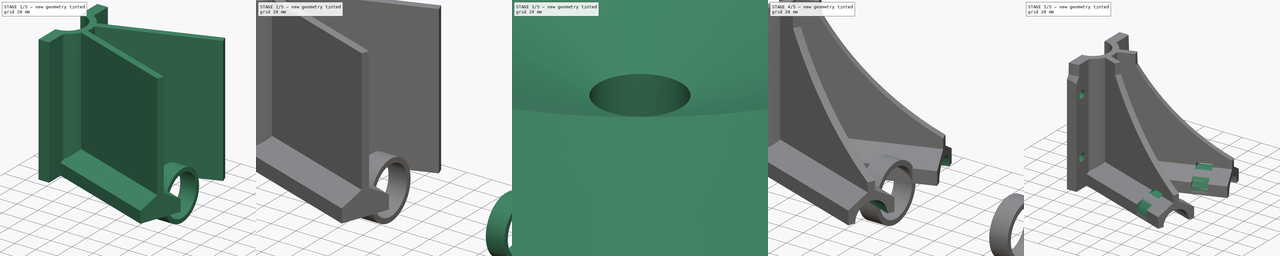
[diagram: build sequence overview — one tinted view per stage of 5, left to right]
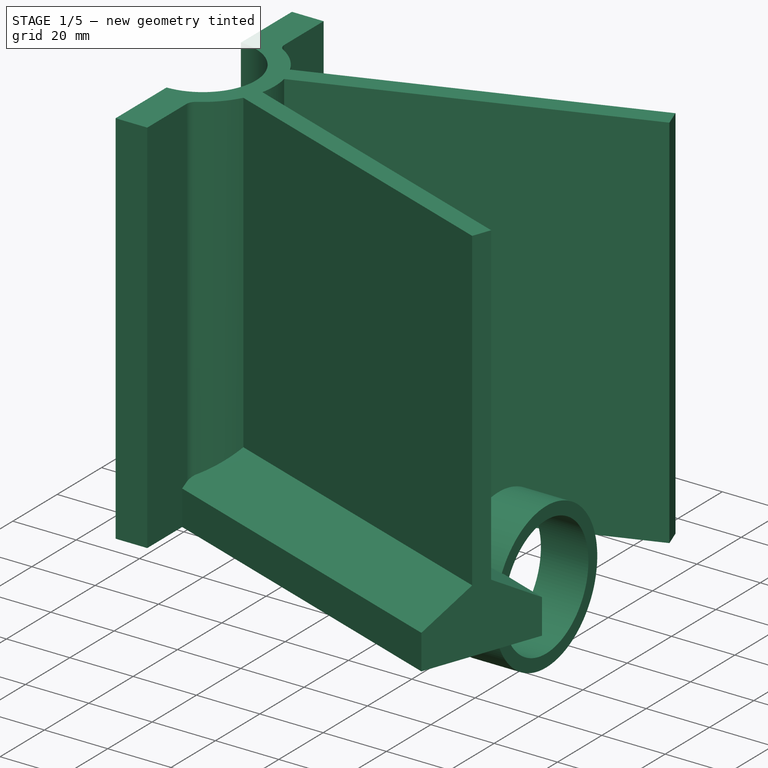
[diagram: stage 1 of 5 — iso view after this stage's code; geometry added in this stage tinted green]
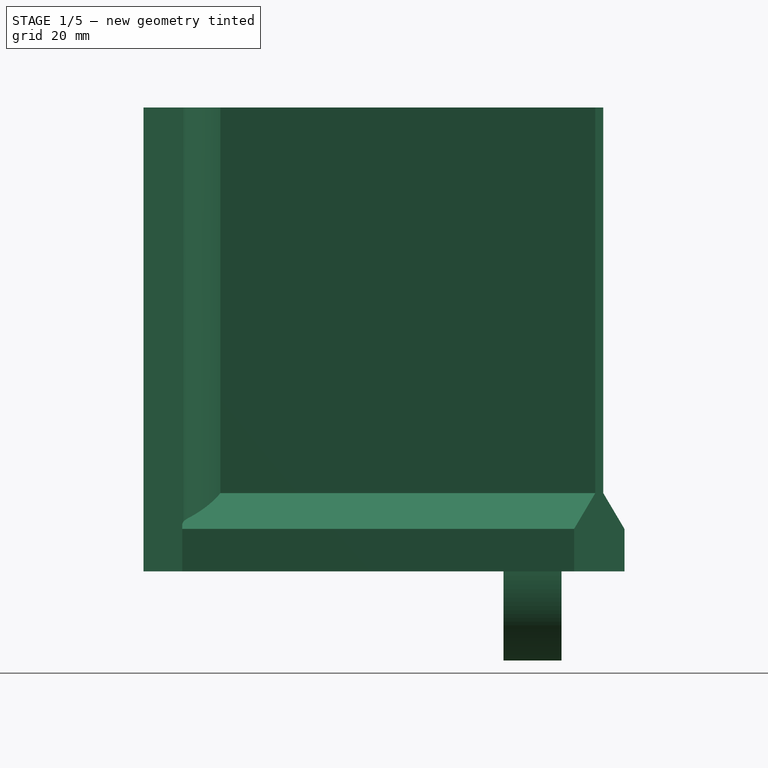
[diagram: stage 1 of 5 — front view after this stage's code; geometry added in this stage tinted green]
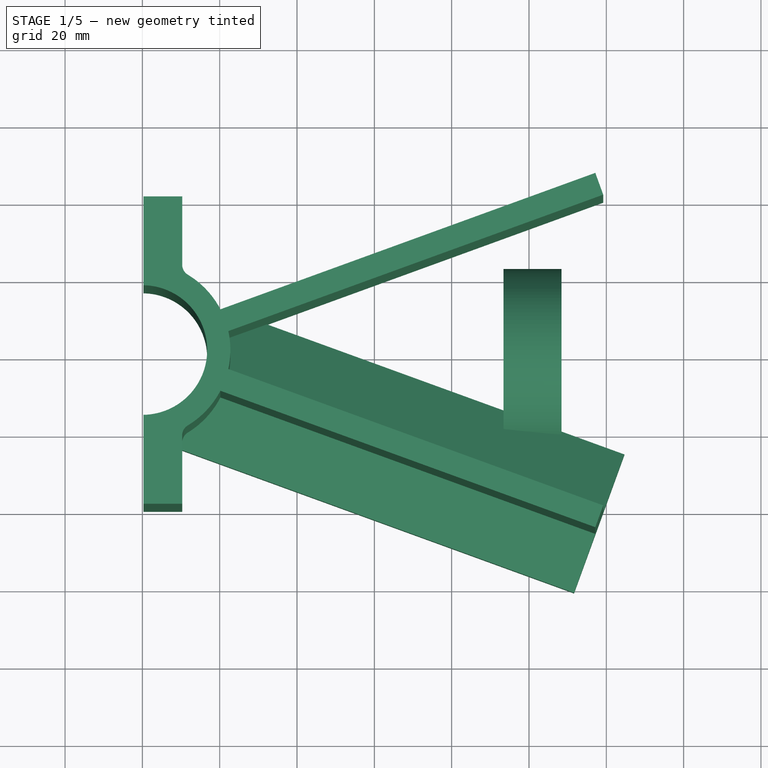
[diagram: stage 1 of 5 — top view after this stage's code; geometry added in this stage tinted green]
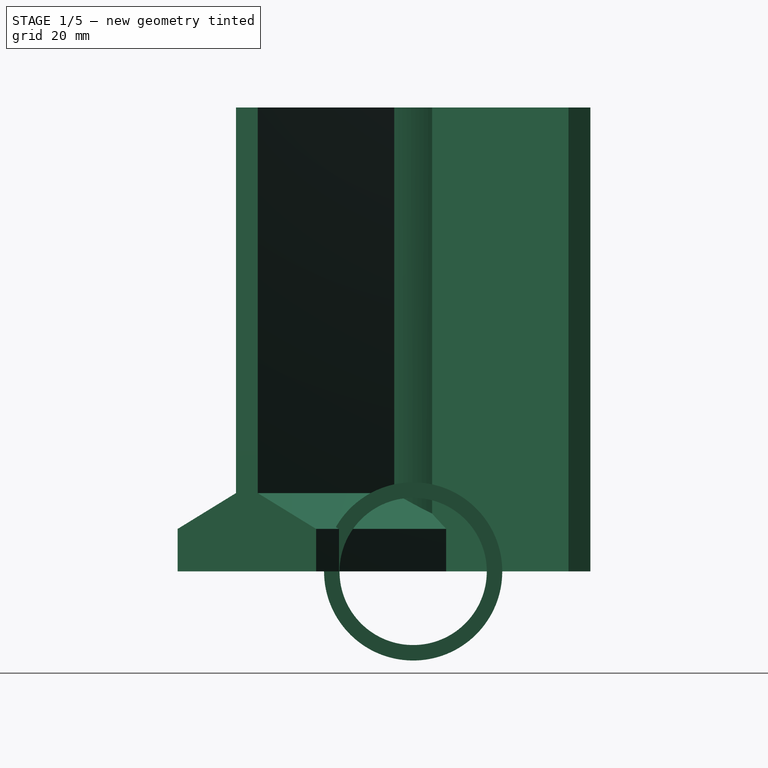
[diagram: stage 1 of 5 — right view after this stage's code; geometry added in this stage tinted green]
FCSTD DOCUMENT  (FreeCAD 0.21R33771 (Git))
Label: MoxonHubSmall
License: All rights reserved
LicenseURL: http://en.wikipedia.org/wiki/All_rights_reserved
objects: Sketcher::SketchObject×10, PartDesign::Body×8, PartDesign::Plane×4, PartDesign::FeatureBase×4, PartDesign::Pocket×4, PartDesign::Pad×3, PartDesign::Revolution×3, PartDesign::Boolean×2
note: 48 computed .brp shape members not serialized (recipe doc carries the construction recipe); baked Part::Feature solids carry a one-line shape summary decoded from their .brp

FEATURE [Sketcher::SketchObject] Sketch
  FullyConstrained = false
  MapMode = 5
  Support = -> [XY_Plane]
  expr: Constraints[39] = .Constraints.mastdia / 2 + 6 mm
  expr: Constraints[40] = .Constraints.mastdia / 2 + 6 mm
  expr: Constraints[41] = .Constraints.mastdia / 2 + 6 mm
  sketch-geometry (20):
    g0: LineSegment StartX=0.3 StartY=39.7623 StartZ=0 EndX=10.3 EndY=39.7623 EndZ=0
    g1: LineSegment StartX=10.3 StartY=-39.7623 StartZ=0 EndX=0.3 EndY=-39.7623 EndZ=0
    g2: ArcOfCircle CenterX=0 CenterY=0 CenterZ=0 NormalX=0 NormalY=0 NormalZ=1 AngleXU=0 Radius=16.765 StartAngle=4.73028 EndAngle=7.83609
    g3: LineSegment StartX=0.3 StartY=-39.7623 StartZ=0 EndX=0.3 EndY=-16.7623 EndZ=0
    g4: LineSegment StartX=0.3 StartY=16.7623 StartZ=0 EndX=0.3 EndY=39.7623 EndZ=0
    g5: LineSegment StartX=10.3 StartY=39.7623 StartZ=0 EndX=10.3 EndY=22.0668 EndZ=0
    g6: LineSegment StartX=10.3 StartY=-22.0668 StartZ=0 EndX=10.3 EndY=-39.7623 EndZ=0
    g7: LineSegment StartX=0 StartY=0 StartZ=0 EndX=110.036 EndY=40.0498 EndZ=0
    g8: LineSegment StartX=0 StartY=0 StartZ=0 EndX=113.566 EndY=-41.3347 EndZ=0
    g9: LineSegment StartX=20.1795 StartY=10.5373 StartZ=0 EndX=117.156 EndY=45.8337 EndZ=0
    g10: LineSegment StartX=22.2316 StartY=4.89911 StartZ=0 EndX=119.208 EndY=40.1956 EndZ=0
    g11: LineSegment StartX=22.2316 StartY=-4.89911 StartZ=0 EndX=119.208 EndY=-40.1956 EndZ=0
    g12: LineSegment StartX=20.1795 StartY=-10.5373 StartZ=0 EndX=117.156 EndY=-45.8337 EndZ=0
    g13: LineSegment StartX=117.156 StartY=-45.8337 StartZ=0 EndX=119.208 EndY=-40.1956 EndZ=0
    g14: LineSegment StartX=119.208 StartY=40.1956 StartZ=0 EndX=117.156 EndY=45.8337 EndZ=0
    g15: ArcOfCircle CenterX=0 CenterY=0 CenterZ=0 NormalX=0 NormalY=0 NormalZ=1 AngleXU=0 Radius=22.765 StartAngle=0.481232 EndAngle=1.02838
    g16: ArcOfCircle CenterX=0 CenterY=0 CenterZ=0 NormalX=0 NormalY=0 NormalZ=1 AngleXU=0 Radius=22.765 StartAngle=5.2548 EndAngle=5.80195
    g17: ArcOfCircle CenterX=0 CenterY=0 CenterZ=0 NormalX=0 NormalY=0 NormalZ=1 AngleXU=0 Radius=22.765 StartAngle=6.06629 EndAngle=6.50009
    g18: ArcOfCircle CenterX=13.3 CenterY=22.0668 CenterZ=0 NormalX=0 NormalY=0 NormalZ=1 AngleXU=0 Radius=3 StartAngle=3.14159 EndAngle=4.16998
    g19: ArcOfCircle CenterX=13.3 CenterY=-22.0668 CenterZ=0 NormalX=0 NormalY=0 NormalZ=1 AngleXU=0 Radius=3 StartAngle=2.11321 EndAngle=3.14159
  constraints (53):
    c: Coincident(g2,g-1)
    c: Coincident(g16,g2)
    c: Coincident(g0,g5)
    c: Coincident(g6,g1)
    c: Coincident(g1,g3)
    c: Coincident(g4,g0)
    c: Horizontal(g0)
    c: Horizontal(g1)
    c: Symmetric(g1,g0,g-1)
    c: DistanceX(g0,g0) = 10
    c: DistanceX(g2,g0) = 0.3
    c: Diameter(g2) = 33.53  'mastdia'
    c: Vertical(g5)
    c: Vertical(g6)
    c: Coincident(g4,g2)
    c: Coincident(g3,g2)
    c: Equal(g1,g0)
    c: Coincident(g8,g7)
    c: Angle(g8,g7) = 0.698132
    c: Coincident(g16,g7)
    c: Angle(g7,g-2) = 1.22173
    c: Parallel(g10,g9)
    c: Parallel(g9,g7)
    c: Parallel(g11,g8)
    c: Parallel(g8,g12)
    c: Coincident(g9,g14)
    c: Coincident(g14,g10)
    c: Coincident(g11,g13)
    c: Coincident(g13,g12)
    c: Equal(g14,g13)
    c: Distance(g13) = 6
    c: Symmetric(g11,g12,g8)
    c: Symmetric(g9,g10,g7)
    c: Equal(g11,g9)
    c: Coincident(g16,g15)
    c: Coincident(g15,g9)
    c: Coincident(g17,g10)
    c: Coincident(g17,g11)
    c: Coincident(g16,g12)
    c: Radius(g17) = 22.765
    c: Radius(g15) = 22.765
    c: Radius(g16) = 22.765
    c: Coincident(g17,g2)
    c: DistanceY(g4,g4) = 23
    c: Vertical(g4)
    c: Vertical(g3)
    c: Tangent(g15,g18) = 1.5708
    c: Tangent(g5,g18) = -1.5708
    c: Tangent(g6,g19) = -1.5708
    c: Tangent(g16,g19) = 1.5708
    c: Radius(g19) = 3
    c: Radius(g18) = 3
    c: Distance(g10) = 103.2
FEATURE [PartDesign::Pad] Pad
  Direction = (0,0,1)
  Length = 120
  Length2 = 10
  Profile = -> Sketch
  ReferenceAxis = -> Sketch [N_Axis]
  Type = 0
FEATURE [PartDesign::Body] Body004
  Group = -> [Clone001]
  Origin = -> Origin004
  Placement = pos=(0,0,0) rot=(0,0,1;0.349066rad)
  Tip = -> Clone001
FEATURE [Sketcher::SketchObject] Sketch007
  FullyConstrained = false
  MapMode = 5
  Support = -> [XY_Plane005]
  sketch-geometry (4):
    g0: LineSegment StartX=93.4181 StartY=19.05 StartZ=0 EndX=108.418 EndY=19.05 EndZ=0
    g1: LineSegment StartX=108.418 StartY=19.05 StartZ=0 EndX=108.418 EndY=23.05 EndZ=0
    g2: LineSegment StartX=108.418 StartY=23.05 StartZ=0 EndX=93.4181 EndY=23.05 EndZ=0
    g3: LineSegment StartX=93.4181 StartY=23.05 StartZ=0 EndX=93.4181 EndY=19.05 EndZ=0
  constraints (11):
    c: Coincident(g0,g1)
    c: Coincident(g1,g2)
    c: Coincident(g2,g3)
    c: Coincident(g3,g0)
    c: Horizontal(g0)
    c: Horizontal(g2)
    c: Vertical(g1)
    c: Vertical(g3)
    c: DistanceX(g0,g0) = 15
    c: DistanceY(g1,g1) = 4
    c: DistanceY(g-1,g0) = 19.05
FEATURE [PartDesign::Revolution] Revolution002
  Angle = 360
  Axis = (1,0,0)
  Base = (0,0,0)
  Profile = -> Sketch007
  ReferenceAxis = -> Sketch007 [H_Axis]
FEATURE [PartDesign::Body] Body007
  Group = -> [Clone003]
  Origin = -> Origin007
  Placement = pos=(0,0,0) rot=(0,0,1;0.349066rad)
  Tip = -> Clone003
FEATURE [PartDesign::Pad] Pad004  label="LArm"
  BaseFeature = -> Pad
  Direction = (0.939693,-0.34202,1e-16)
  Length = 109
  Length2 = 10
  Profile = -> Sketch001
  ReferenceAxis = -> Sketch001 [N_Axis]
  Reversed = true
  Type = 0
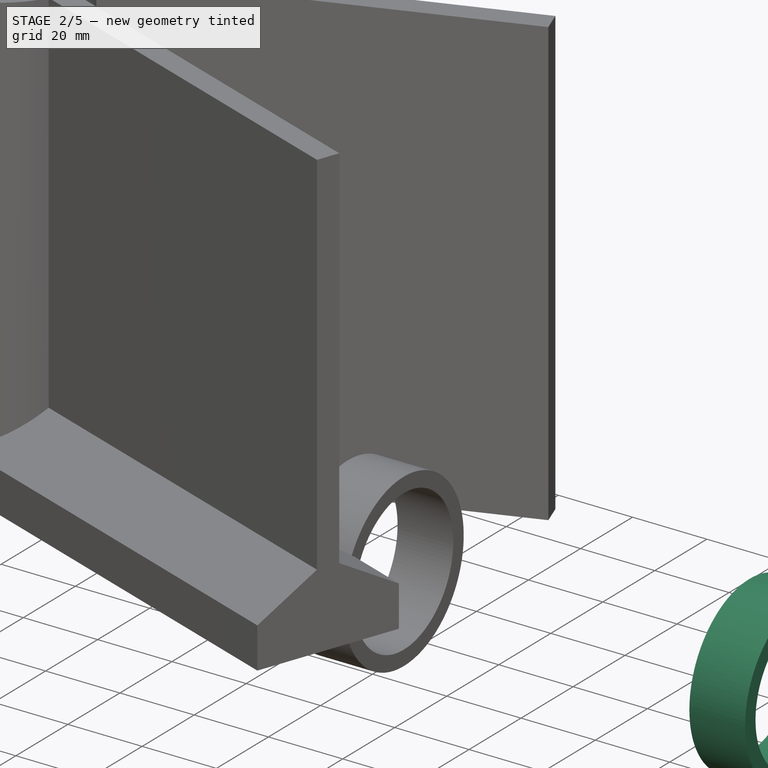
[diagram: stage 2 of 5 — iso view after this stage's code; geometry added in this stage tinted green]
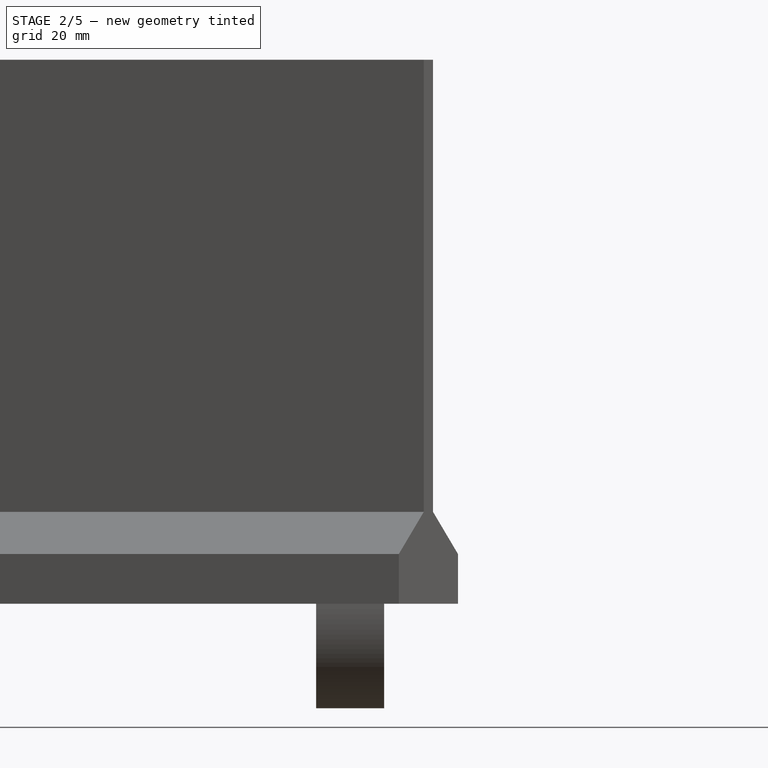
[diagram: stage 2 of 5 — front view after this stage's code; geometry added in this stage tinted green]
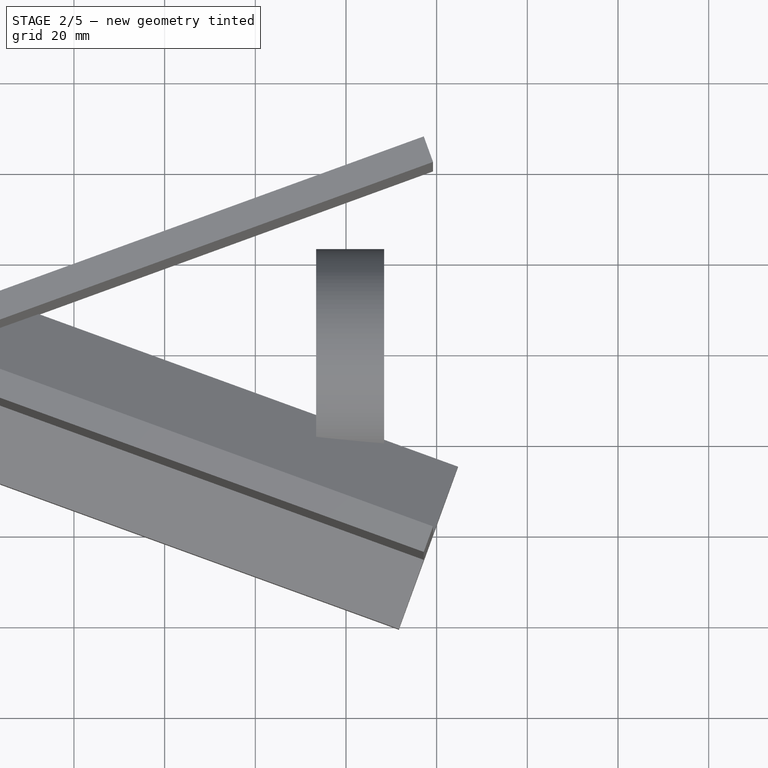
[diagram: stage 2 of 5 — top view after this stage's code; geometry added in this stage tinted green]
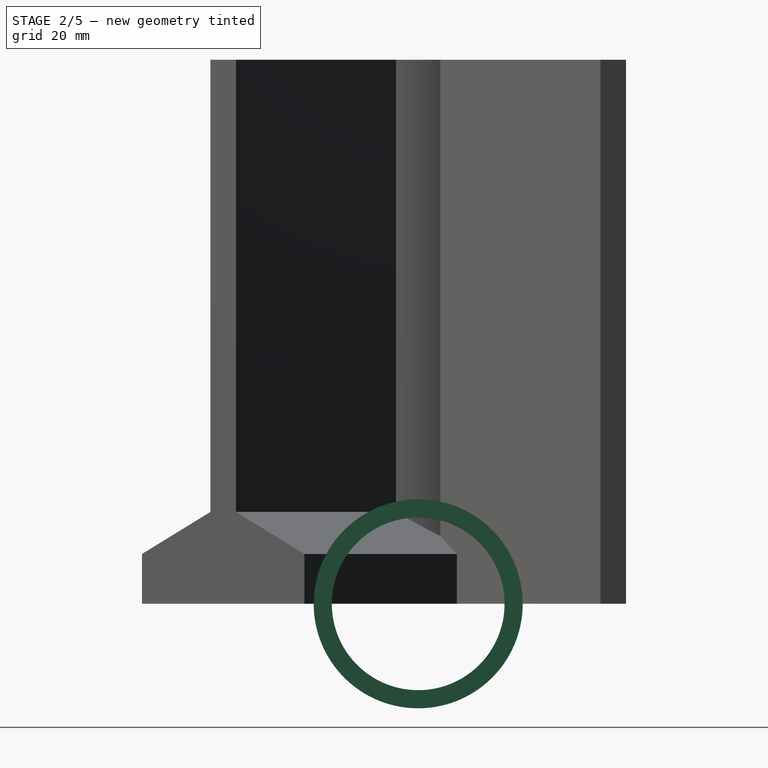
[diagram: stage 2 of 5 — right view after this stage's code; geometry added in this stage tinted green]
FEATURE [PartDesign::Body] Body001
  Group = -> [DatumPlane002,Sketch003,Revolution]
  Origin = -> Origin001
  Tip = -> Revolution
FEATURE [Sketcher::SketchObject] Sketch004
  FullyConstrained = true
  MapMode = 5
  Placement = pos=(118.182,-43.0147,0) rot=(0.710565,0.497543,0.497543;1.90603rad)
  Support = -> [DatumPlane]
  sketch-geometry (1):
    g0: Circle CenterX=0 CenterY=0 CenterZ=0 NormalX=0 NormalY=0 NormalZ=1 AngleXU=0 Radius=13.335
  constraints (3):
    c: PointOnObject(g0,g-2)
    c: Diameter(g0) = 26.67
    c: DistanceY(g0,g-1) = 0
FEATURE [Sketcher::SketchObject] Sketch005
  FullyConstrained = true
  MapMode = 5
  Placement = pos=(118.182,43.0147,0) rot=(0.443713,0.633687,0.633687;2.30637rad)
  Support = -> [DatumPlane001]
  sketch-geometry (1):
    g0: Circle CenterX=0 CenterY=0 CenterZ=0 NormalX=0 NormalY=0 NormalZ=1 AngleXU=0 Radius=13.335
  constraints (3):
    c: PointOnObject(g0,g-2)
    c: Diameter(g0) = 26.67
    c: DistanceY(g0,g-1) = 0
FEATURE [Sketcher::SketchObject] Sketch006
  FullyConstrained = false
  MapMode = 5
  Support = -> [XY_Plane002]
  sketch-geometry (4):
    g0: LineSegment StartX=201.474 StartY=19.05 StartZ=0 EndX=216.474 EndY=19.05 EndZ=0
    g1: LineSegment StartX=216.474 StartY=19.05 StartZ=0 EndX=216.474 EndY=23.05 EndZ=0
    g2: LineSegment StartX=216.474 StartY=23.05 StartZ=0 EndX=201.474 EndY=23.05 EndZ=0
    g3: LineSegment StartX=201.474 StartY=23.05 StartZ=0 EndX=201.474 EndY=19.05 EndZ=0
  constraints (11):
    c: Coincident(g0,g1)
    c: Coincident(g1,g2)
    c: Coincident(g2,g3)
    c: Coincident(g3,g0)
    c: Horizontal(g0)
    c: Horizontal(g2)
    c: Vertical(g1)
    c: Vertical(g3)
    c: DistanceX(g0,g0) = 15
    c: DistanceY(g1,g1) = 4
    c: DistanceY(g-1,g0) = 19.05
FEATURE [PartDesign::Revolution] Revolution001
  Angle = 360
  Axis = (1,0,0)
  Base = (0,0,0)
  Profile = -> Sketch006
  ReferenceAxis = -> Sketch006 [H_Axis]
FEATURE [PartDesign::Body] Body005  label="Insidering"
  Group = -> [Sketch007,Revolution002]
  Origin = -> Origin005
  Tip = -> Revolution002
FEATURE [PartDesign::FeatureBase] Clone002
  BaseFeature = -> Revolution002
FEATURE [PartDesign::Body] Body006
  Group = -> [Clone002]
  Origin = -> Origin006
  Placement = pos=(0,0,0) rot=(0,0,-1;0.349066rad)
  Tip = -> Clone002
FEATURE [PartDesign::FeatureBase] Clone003
  BaseFeature = -> Revolution002
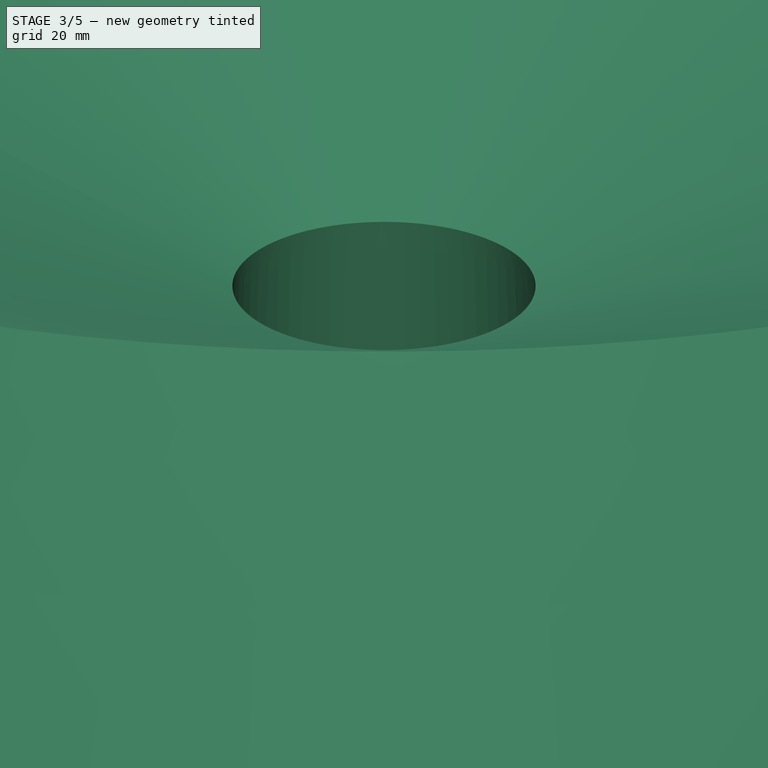
[diagram: stage 3 of 5 — iso view after this stage's code; geometry added in this stage tinted green]
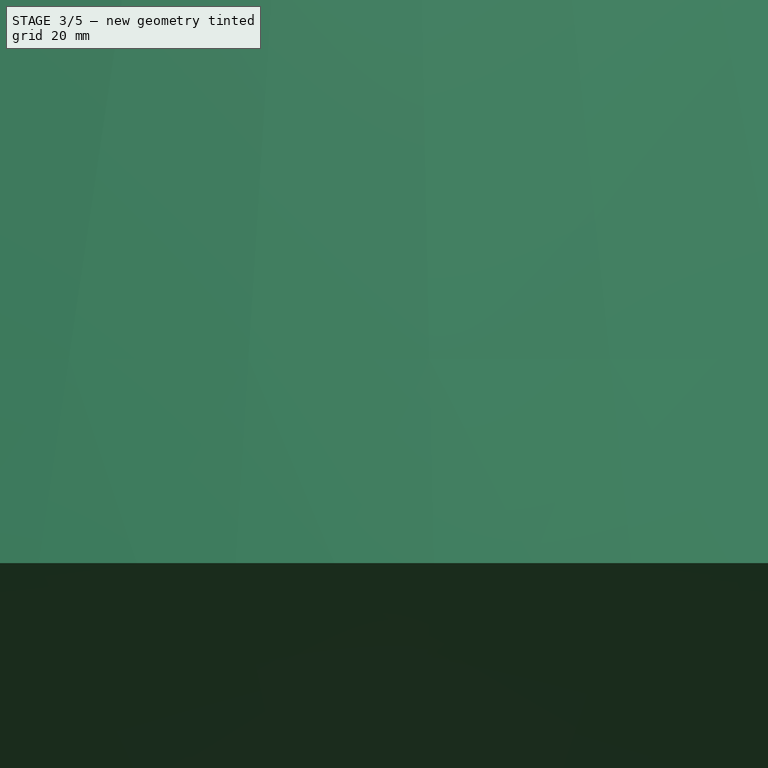
[diagram: stage 3 of 5 — front view after this stage's code; geometry added in this stage tinted green]
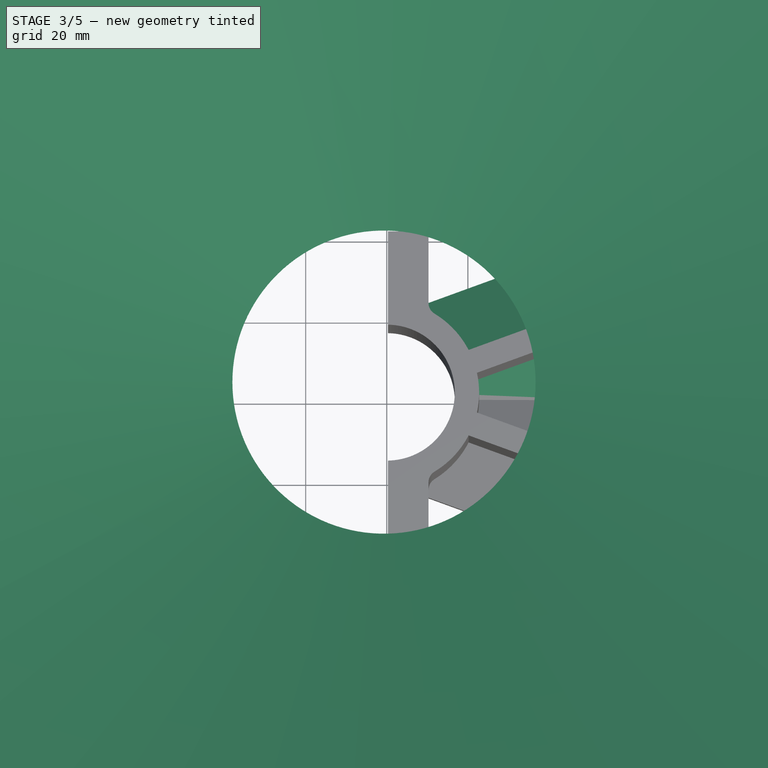
[diagram: stage 3 of 5 — top view after this stage's code; geometry added in this stage tinted green]
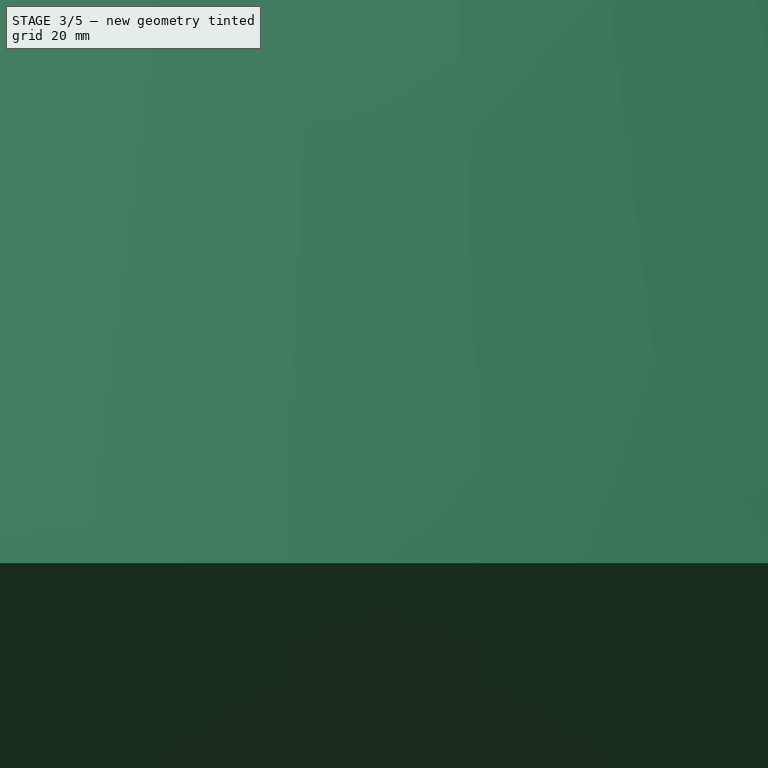
[diagram: stage 3 of 5 — right view after this stage's code; geometry added in this stage tinted green]
FEATURE [PartDesign::Plane] DatumPlane  label="LDatumPlane"
  Length = 196.683
  MapMode = 5
  Placement = pos=(118.182,-43.0147,0) rot=(0.710565,0.497543,0.497543;1.90603rad)
  ResizeMode = 0
  Support = -> [Pad]
  Width = 175.999
FEATURE [Sketcher::SketchObject] Sketch001
  FullyConstrained = true
  MapMode = 5
  Placement = pos=(118.182,-43.0147,0) rot=(0.710565,0.497543,0.497543;1.90603rad)
  Support = -> [DatumPlane]
  sketch-geometry (6):
    g0: LineSegment StartX=0 StartY=21.995 StartZ=0 EndX=-19.05 EndY=10.9944 EndZ=0
    g1: LineSegment StartX=-19.05 StartY=10.9944 StartZ=0 EndX=-19.05 EndY=0 EndZ=0
    g2: LineSegment StartX=19.05 StartY=0 StartZ=0 EndX=19.05 EndY=10.9944 EndZ=0
    g3: LineSegment StartX=19.05 StartY=10.9944 StartZ=0 EndX=0 EndY=21.995 EndZ=0
    g4: Circle CenterX=0 CenterY=0 CenterZ=0 NormalX=0 NormalY=0 NormalZ=1 AngleXU=0 Radius=21.995
    g5: LineSegment StartX=-19.05 StartY=0 StartZ=0 EndX=19.05 EndY=0 EndZ=0
  constraints (16):
    c: Coincident(g0,g1)
    c: Coincident(g2,g3)
    c: Coincident(g3,g0)
    c: Equal(g0,g3)
    c: PointOnObject(g0,g4)
    c: PointOnObject(g2,g4)
    c: PointOnObject(g3,g4)
    c: PointOnObject(g3,g-2)
    c: DistanceX(g0,g2) = 38.1
    c: Coincident(g4,g-1)
    c: Horizontal(g5)
    c: Coincident(g1,g5)
    c: Coincident(g2,g5)
    c: Diameter(g4) = 43.99
    c: Vertical(g1)
    c: Symmetric(g2,g1,g4)
FEATURE [PartDesign::Plane] DatumPlane001
  Length = 196.683
  MapMode = 5
  Placement = pos=(118.182,43.0147,0) rot=(0.443713,0.633687,0.633687;2.30637rad)
  ResizeMode = 0
  Support = -> [Pad]
  Width = 175.999
FEATURE [Sketcher::SketchObject] Sketch002
  FullyConstrained = true
  MapMode = 5
  Placement = pos=(118.182,43.0147,0) rot=(0.443713,0.633687,0.633687;2.30637rad)
  Support = -> [DatumPlane001]
  sketch-geometry (6):
    g0: LineSegment StartX=0 StartY=21.995 StartZ=0 EndX=-19.05 EndY=10.9944 EndZ=0
    g1: LineSegment StartX=-19.05 StartY=10.9944 StartZ=0 EndX=-19.05 EndY=0 EndZ=0
    g2: LineSegment StartX=19.05 StartY=0 StartZ=0 EndX=19.05 EndY=10.9944 EndZ=0
    g3: LineSegment StartX=19.05 StartY=10.9944 StartZ=0 EndX=0 EndY=21.995 EndZ=0
    g4: Circle CenterX=0 CenterY=0 CenterZ=0 NormalX=0 NormalY=0 NormalZ=1 AngleXU=0 Radius=21.995
    g5: LineSegment StartX=-19.05 StartY=0 StartZ=0 EndX=19.05 EndY=0 EndZ=0
  constraints (16):
    c: Coincident(g0,g1)
    c: Coincident(g2,g3)
    c: Coincident(g3,g0)
    c: Equal(g0,g3)
    c: PointOnObject(g0,g4)
    c: PointOnObject(g2,g4)
    c: PointOnObject(g3,g4)
    c: PointOnObject(g3,g-2)
    c: DistanceX(g0,g2) = 38.1
    c: Coincident(g4,g-1)
    c: Horizontal(g5)
    c: Coincident(g1,g5)
    c: Coincident(g2,g5)
    c: Diameter(g4) = 43.99
    c: Vertical(g1)
    c: Symmetric(g2,g1,g4)
FEATURE [PartDesign::Plane] DatumPlane002
  Length = 75.4069
  MapMode = 5
  Placement = pos=(-0.68404,1.87939,0) rot=(-0.123724,0.701674,0.701674;3.38779rad)
  ResizeMode = 0
  Width = 61.3213
FEATURE [Sketcher::SketchObject] Sketch003
  FullyConstrained = false
  MapMode = 5
  Placement = pos=(-0.68404,1.87939,0) rot=(-0.123724,0.701674,0.701674;3.38779rad)
  Support = -> [DatumPlane002]
  sketch-geometry (5):
    g0: ArcOfCircle CenterX=-223.518 CenterY=219.603 CenterZ=0 NormalX=0 NormalY=0 NormalZ=1 AngleXU=0 Radius=214.833 StartAngle=4.3544 EndAngle=5.74292
    g1: LineSegment StartX=-298.795 StartY=18.39 StartZ=0 EndX=-490.676 EndY=90.1756 EndZ=0
    g2: LineSegment StartX=-490.676 StartY=90.1756 StartZ=0 EndX=-318.652 EndY=291.762 EndZ=0
    g3: LineSegment StartX=-318.652 StartY=291.762 StartZ=0 EndX=-37.3854 EndY=161.036 EndZ=0
    g4: LineSegment StartX=-37.3854 StartY=161.036 StartZ=0 EndX=-39.2827 EndY=109.101 EndZ=0
  constraints (5):
    c: Tangent(g0,g1) = 1.5708
    c: Coincident(g1,g2)
    c: Coincident(g2,g3)
    c: Coincident(g3,g4)
    c: Coincident(g4,g0)
FEATURE [PartDesign::Revolution] Revolution
  Angle = 360
  Axis = (1e-16,-4e-16,1)
  Base = (-0.68404,1.87939,0)
  Placement = pos=(-0.68404,1.87939,0) rot=(-0.123724,0.701674,0.701674;3.38779rad)
  Profile = -> Sketch003
  ReferenceAxis = -> Sketch003 [V_Axis]
FEATURE [PartDesign::Body] Body002  label="Ring"
  Group = -> [Sketch006,Revolution001]
  Origin = -> Origin002
  Tip = -> Revolution001
FEATURE [PartDesign::FeatureBase] Clone
  BaseFeature = -> Body002
FEATURE [PartDesign::Body] Body003
  Group = -> [Clone]
  Origin = -> Origin003
  Placement = pos=(0,0,0) rot=(0,0,-1;0.349066rad)
  Tip = -> Clone
FEATURE [PartDesign::FeatureBase] Clone001
  BaseFeature = -> Revolution001
FEATURE [PartDesign::Pad] Pad002  label="RArm"
  BaseFeature = -> Pad004
  Direction = (0.939693,0.34202,-2e-16)
  Length = 109
  Length2 = 10
  Profile = -> Sketch002
  ReferenceAxis = -> Sketch002 [N_Axis]
  Reversed = true
  Type = 0
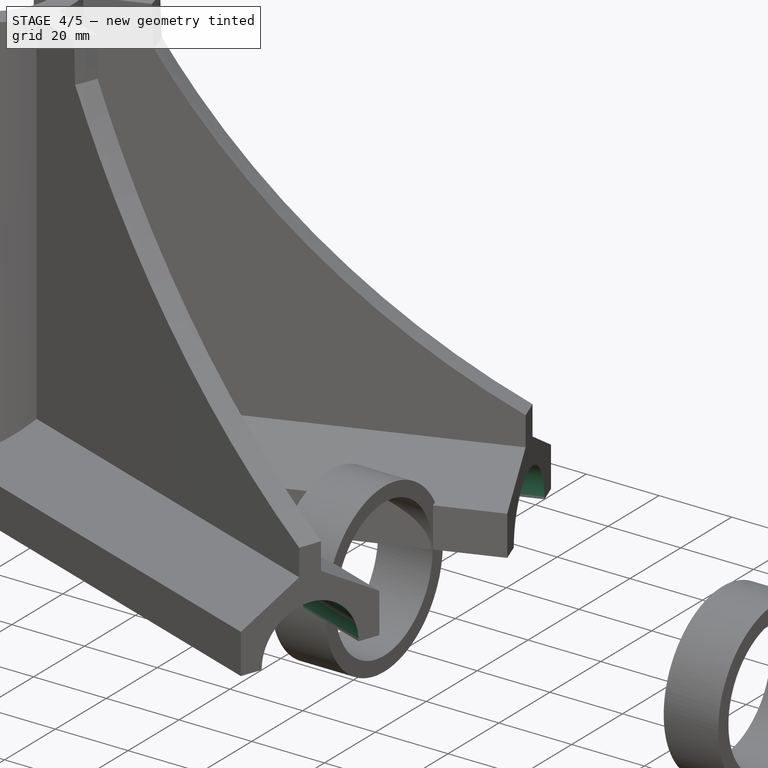
[diagram: stage 4 of 5 — iso view after this stage's code; geometry added in this stage tinted green]
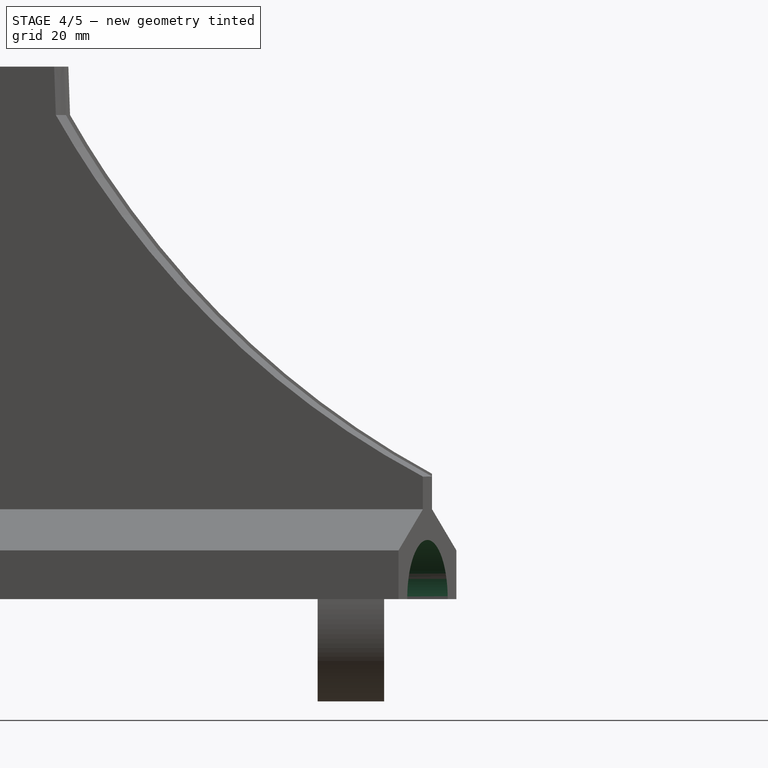
[diagram: stage 4 of 5 — front view after this stage's code; geometry added in this stage tinted green]
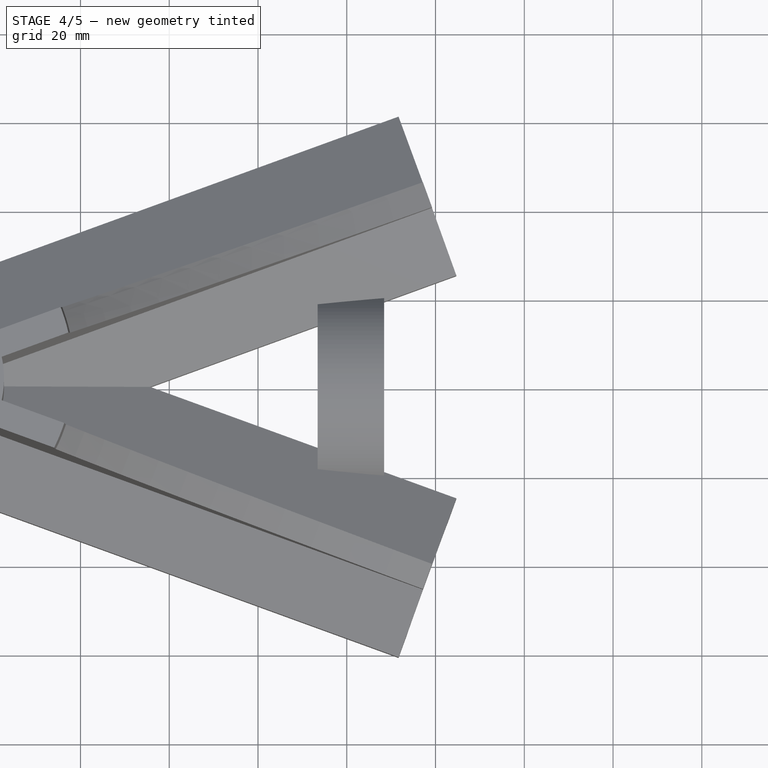
[diagram: stage 4 of 5 — top view after this stage's code; geometry added in this stage tinted green]
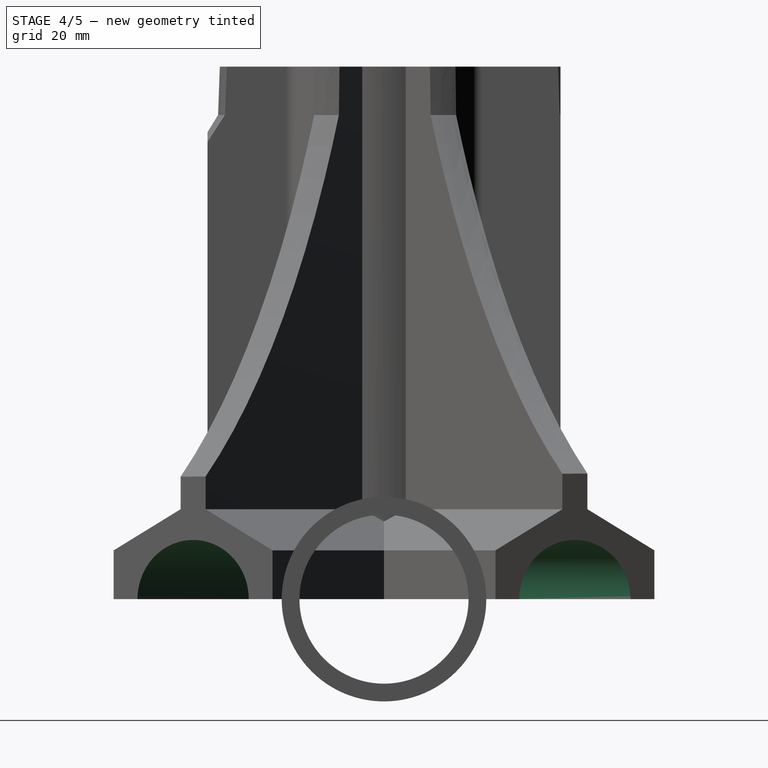
[diagram: stage 4 of 5 — right view after this stage's code; geometry added in this stage tinted green]
FEATURE [PartDesign::Boolean] Boolean
  BaseFeature = -> Pad002
  Group = -> [Body001]
  Type = 1
FEATURE [PartDesign::Pocket] Pocket  label="LPolepocket"
  BaseFeature = -> Boolean
  Direction = (-0.939693,0.34202,-1e-16)
  Length = 77.8
  Length2 = 5
  Profile = -> Sketch004
  ReferenceAxis = -> Sketch004 [N_Axis]
  Type = 0
FEATURE [PartDesign::Pocket] Pocket001  label="RPolepocket"
  BaseFeature = -> Pocket
  Direction = (-0.939693,-0.34202,2e-16)
  Length = 77.8
  Length2 = 5
  Profile = -> Sketch005
  ReferenceAxis = -> Sketch005 [N_Axis]
  Type = 0
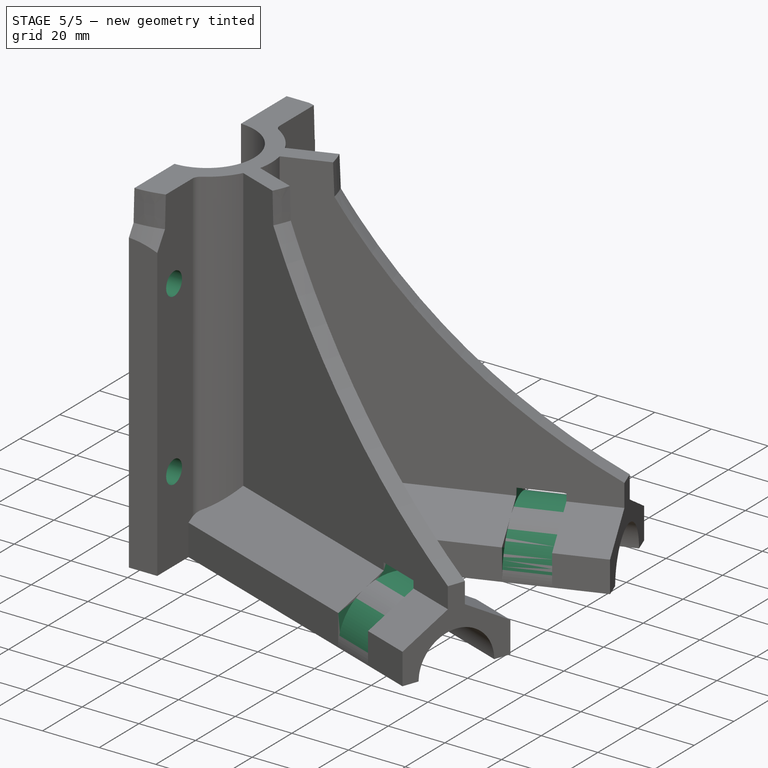
[diagram: stage 5 of 5 — iso view after this stage's code; geometry added in this stage tinted green]
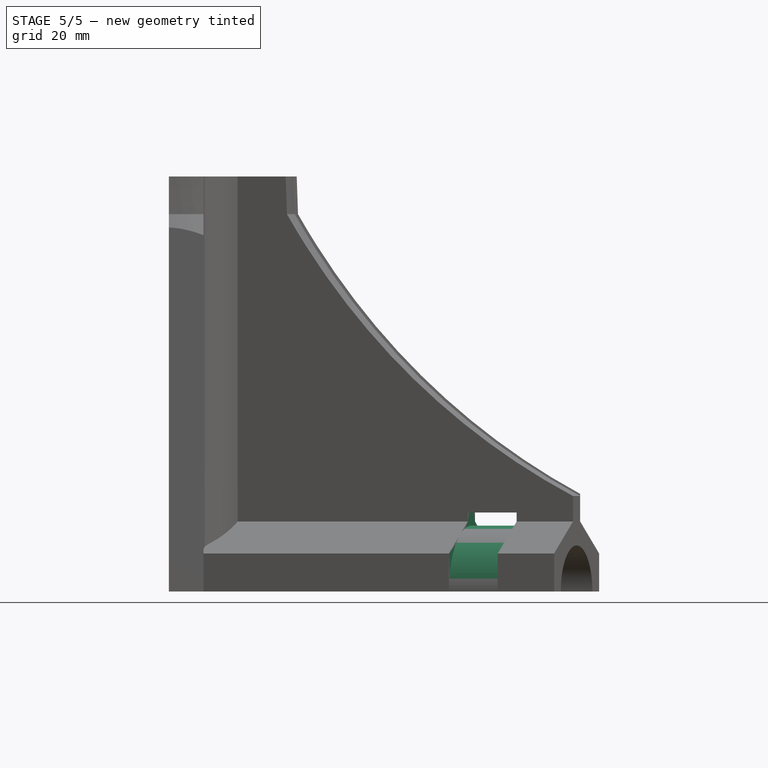
[diagram: stage 5 of 5 — front view after this stage's code; geometry added in this stage tinted green]
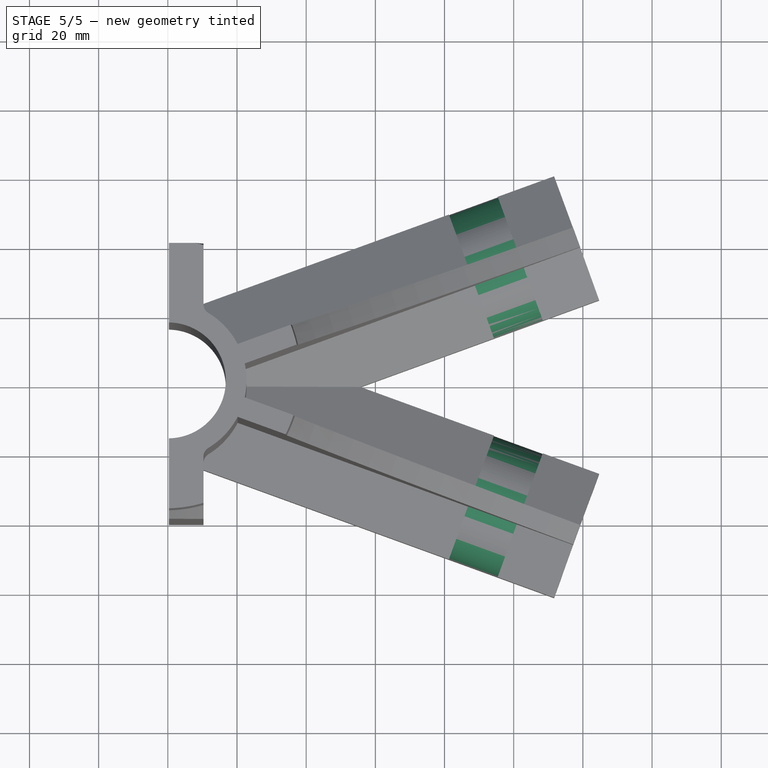
[diagram: stage 5 of 5 — top view after this stage's code; geometry added in this stage tinted green]
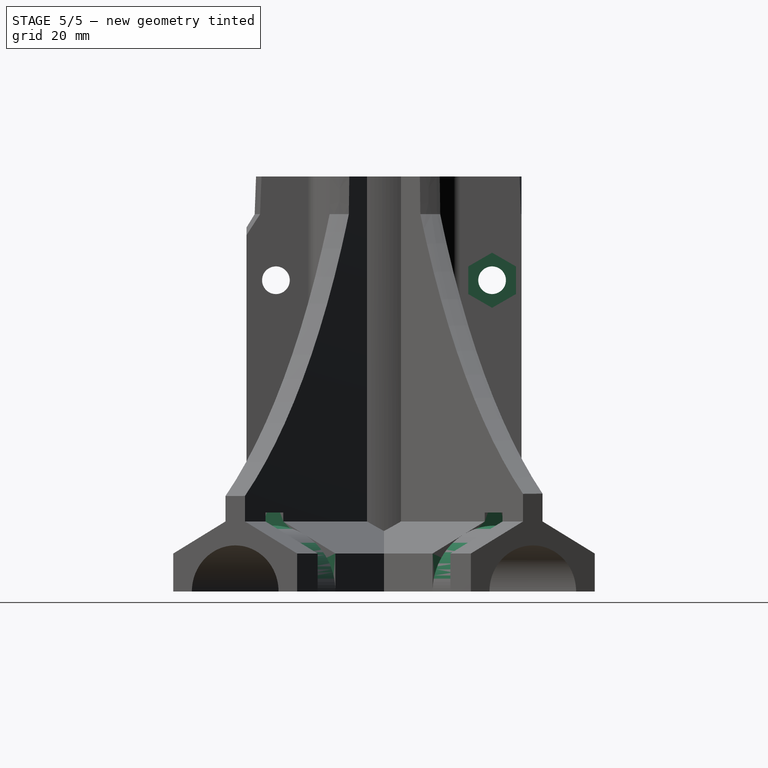
[diagram: stage 5 of 5 — right view after this stage's code; geometry added in this stage tinted green]
FEATURE [PartDesign::Boolean] Boolean001
  BaseFeature = -> Pocket001
  Group = -> [Body006,Body003,Body007,Body004]
  Type = 1
FEATURE [PartDesign::Plane] DatumPlane003
  Length = 148.414
  MapMode = 5
  Placement = pos=(10.3,0,0) rot=(0.57735,0.57735,0.57735;2.0944rad)
  ResizeMode = 0
  Support = -> [Boolean001]
  Width = 171.582
FEATURE [Sketcher::SketchObject] Sketch008
  FullyConstrained = false
  MapMode = 5
  Placement = pos=(10.3,0,0) rot=(0.57735,0.57735,0.57735;2.0944rad)
  Support = -> [DatumPlane003]
  sketch-geometry (8):
    g0: LineSegment StartX=-59.1726 StartY=30 StartZ=0 EndX=60.1206 EndY=30 EndZ=0
    g1: LineSegment StartX=-68.3899 StartY=90 StartZ=0 EndX=63.6657 EndY=90 EndZ=0
    g2: LineSegment StartX=31.25 StartY=134.14 StartZ=0 EndX=31.25 EndY=-0.123402 EndZ=0
    g3: LineSegment StartX=-31.25 StartY=125.913 StartZ=0 EndX=-31.25 EndY=0.123402 EndZ=0
    g4: Circle CenterX=31.25 CenterY=90 CenterZ=0 NormalX=0 NormalY=0 NormalZ=1 AngleXU=0 Radius=4
    g5: Circle CenterX=31.25 CenterY=30 CenterZ=0 NormalX=0 NormalY=0 NormalZ=1 AngleXU=0 Radius=4
    g6: Circle CenterX=-31.25 CenterY=30 CenterZ=0 NormalX=0 NormalY=0 NormalZ=1 AngleXU=0 Radius=4
    g7: Circle CenterX=-31.25 CenterY=90 CenterZ=0 NormalX=0 NormalY=0 NormalZ=1 AngleXU=0 Radius=4
  constraints (20):
    c: Horizontal(g0)
    c: Horizontal(g1)
    c: DistanceY(g-1,g0) = 30
    c: DistanceY(g-1,g1) = 90
    c: Vertical(g2)
    c: Vertical(g3)
    c: Symmetric(g3,g2,g-1)
    c: DistanceX(g-1,g2) = 31.25
    c: PointOnObject(g4,g2)
    c: PointOnObject(g4,g1)
    c: PointOnObject(g5,g2)
    c: Tangent(g5,g0) = -1.5708
    c: PointOnObject(g7,g1)
    c: Tangent(g7,g3) = -1.5708
    c: Tangent(g6,g0) = -1.5708
    c: PointOnObject(g6,g3)
    c: Equal(g7,g6)
    c: Equal(g6,g5)
    c: Equal(g5,g4)
    c: Diameter(g4) = 8
FEATURE [PartDesign::Pocket] Pocket002
  BaseFeature = -> Boolean001
  Direction = (-1,0,0)
  Length = 5
  Length2 = 5
  Profile = -> Sketch008
  ReferenceAxis = -> Sketch008 [N_Axis]
  Type = 1
FEATURE [Sketcher::SketchObject] Sketch009
  FullyConstrained = false
  MapMode = 5
  Placement = pos=(10.3,0,0) rot=(0.57735,0.57735,0.57735;2.0944rad)
  Support = -> [DatumPlane003]
  sketch-geometry (18):
    g0: LineSegment StartX=-59.1726 StartY=30 StartZ=0 EndX=60.1206 EndY=30 EndZ=0
    g1: LineSegment StartX=-68.3899 StartY=90 StartZ=0 EndX=63.6657 EndY=90 EndZ=0
    g2: LineSegment StartX=31.25 StartY=134.14 StartZ=0 EndX=31.25 EndY=-0.123374 EndZ=0
    g3: LineSegment StartX=-31.25 StartY=125.913 StartZ=0 EndX=-31.25 EndY=0.123374 EndZ=0
    g4: LineSegment StartX=38.15 StartY=86.0163 StartZ=0 EndX=38.15 EndY=93.9837 EndZ=0
    g5: LineSegment StartX=38.15 StartY=93.9837 StartZ=0 EndX=31.25 EndY=97.9674 EndZ=0
    g6: LineSegment StartX=31.25 StartY=97.9674 StartZ=0 EndX=24.35 EndY=93.9837 EndZ=0
    g7: LineSegment StartX=24.35 StartY=93.9837 StartZ=0 EndX=24.35 EndY=86.0163 EndZ=0
    g8: LineSegment StartX=24.35 StartY=86.0163 StartZ=0 EndX=31.25 EndY=82.0326 EndZ=0
    g9: LineSegment StartX=31.25 StartY=82.0326 StartZ=0 EndX=38.15 EndY=86.0163 EndZ=0
    g10: Circle CenterX=31.25 CenterY=90 CenterZ=0 NormalX=0 NormalY=0 NormalZ=1 AngleXU=0 Radius=7.96743
    g11: LineSegment StartX=31.25 StartY=37.9674 StartZ=0 EndX=24.35 EndY=33.9837 EndZ=0
    g12: LineSegment StartX=24.35 StartY=33.9837 StartZ=0 EndX=24.35 EndY=26.0163 EndZ=0
    g13: LineSegment StartX=24.35 StartY=26.0163 StartZ=0 EndX=31.25 EndY=22.0326 EndZ=0
    g14: LineSegment StartX=31.25 StartY=22.0326 StartZ=0 EndX=38.15 EndY=26.0163 EndZ=0
    g15: LineSegment StartX=38.15 StartY=26.0163 StartZ=0 EndX=38.15 EndY=33.9837 EndZ=0
    g16: LineSegment StartX=38.15 StartY=33.9837 StartZ=0 EndX=31.25 EndY=37.9674 EndZ=0
    g17: Circle CenterX=31.25 CenterY=30 CenterZ=0 NormalX=0 NormalY=0 NormalZ=1 AngleXU=0 Radius=7.96743
  constraints (42):
    c: Horizontal(g0)
    c: Horizontal(g1)
    c: DistanceY(g-1,g0) = 30
    c: DistanceY(g-1,g1) = 90
    c: Vertical(g2)
    c: Vertical(g3)
    c: Symmetric(g3,g2,g-1)
    c: DistanceX(g-1,g2) = 31.25
    c: Coincident(g4,g5)
    c: Coincident(g5,g6)
    c: Coincident(g6,g7)
    c: Coincident(g7,g8)
    c: Coincident(g8,g9)
    c: Coincident(g9,g4)
    c: Equal(g4, g5-g9) x5
    c: PointOnObject(g4,g10)
    c: PointOnObject(g5,g10)
    c: PointOnObject(g6,g10)
    c: PointOnObject(g7,g10)
    c: PointOnObject(g8,g10)
    c: PointOnObject(g9,g10)
    c: PointOnObject(g10,g1)
    c: PointOnObject(g10,g2)
    c: PointOnObject(g5,g2)
    c: Coincident(g11,g12)
    c: Coincident(g12,g13)
    c: Coincident(g13,g14)
    c: Coincident(g14,g15)
    c: Coincident(g15,g16)
    c: Coincident(g16,g11)
    c: Equal(g11, g12-g16) x5
    c: PointOnObject(g11,g17)
    c: PointOnObject(g12,g17)
    c: PointOnObject(g13,g17)
    c: PointOnObject(g14,g17)
    c: PointOnObject(g15,g17)
    c: PointOnObject(g16,g17)
    c: PointOnObject(g17,g2)
    c: PointOnObject(g16,g2)
    c: PointOnObject(g17,g0)
    c: Equal(g16,g5)
    c: DistanceX(g6,g4) = 13.8
FEATURE [PartDesign::Pocket] Pocket003  label="Hexhead"
  BaseFeature = -> Pocket002
  Direction = (-1,0,0)
  Length = 4
  Length2 = 5
  Profile = -> Sketch009
  ReferenceAxis = -> Sketch009 [N_Axis]
  Type = 0
FEATURE [PartDesign::Body] Body
  Group = -> [Sketch,Pad,DatumPlane,Pad004,Sketch001,DatumPlane001,Sketch002,Pad002,Boolean,Sketch004,Pocket,Sketch005,Pocket001,Boolean001,DatumPlane003,Sketch008,Pocket002,Sketch009,Pocket003]
  Origin = -> Origin
  Tip = -> Pocket003
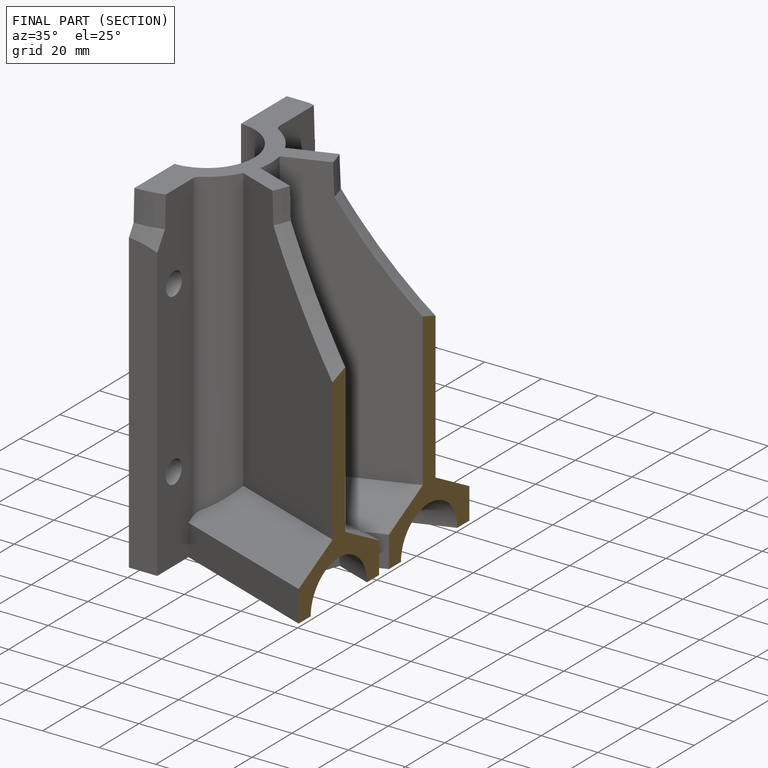
[diagram: finished part — half-section view (interior)]
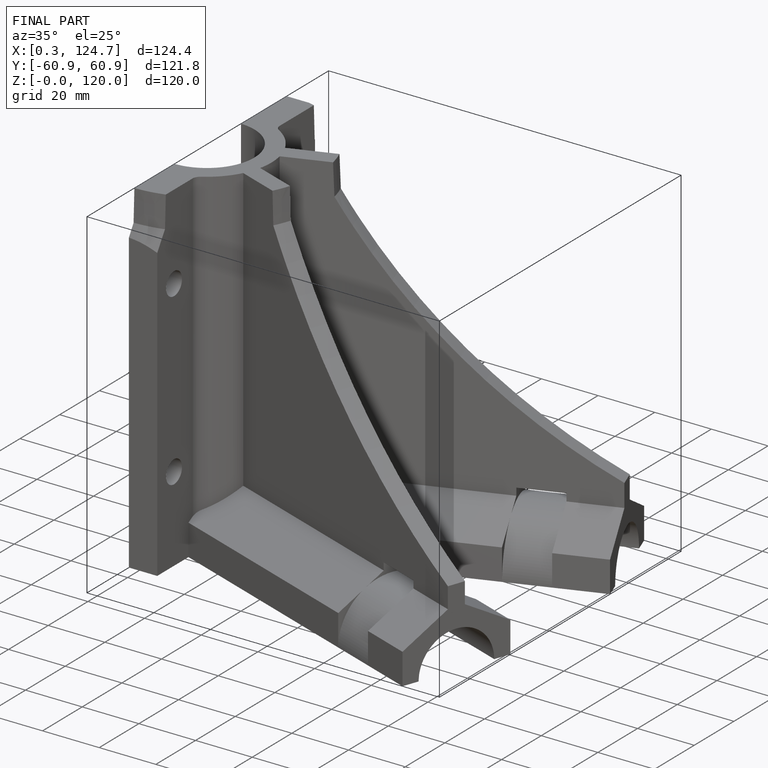
[diagram: finished part — iso view with bounding-box wireframe]
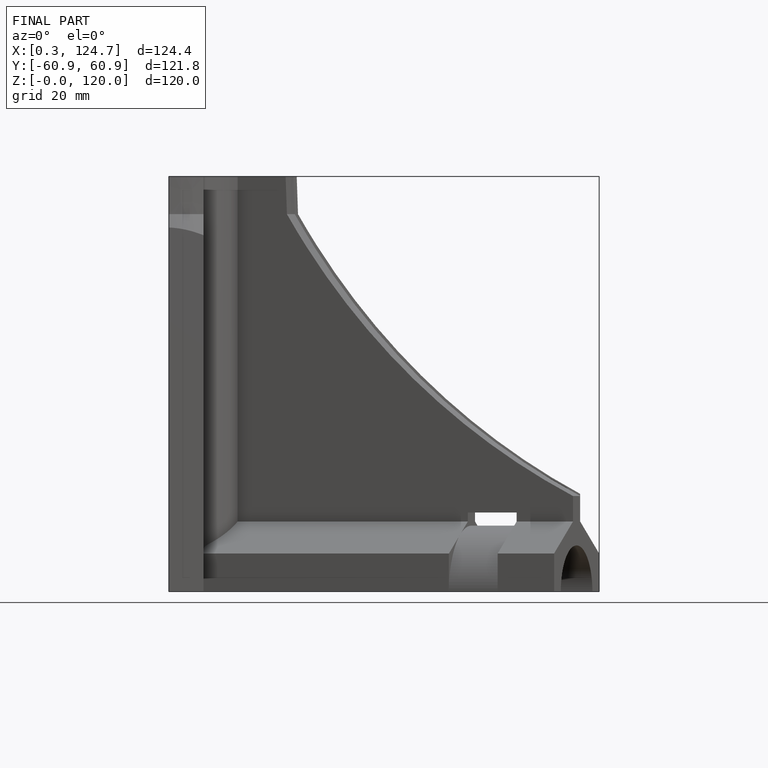
[diagram: finished part — front view with bounding-box wireframe]
